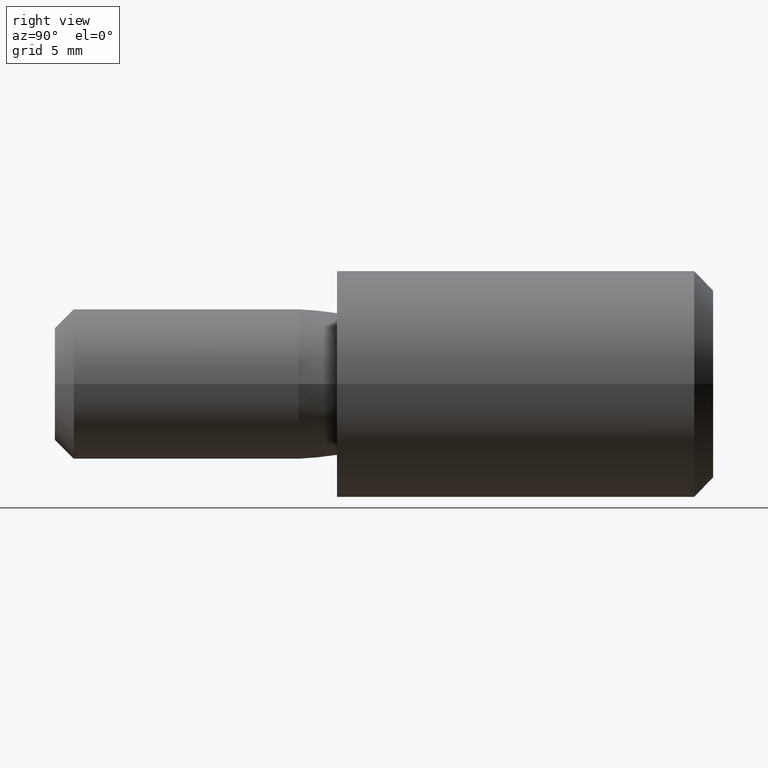
[diagram: clean part render]
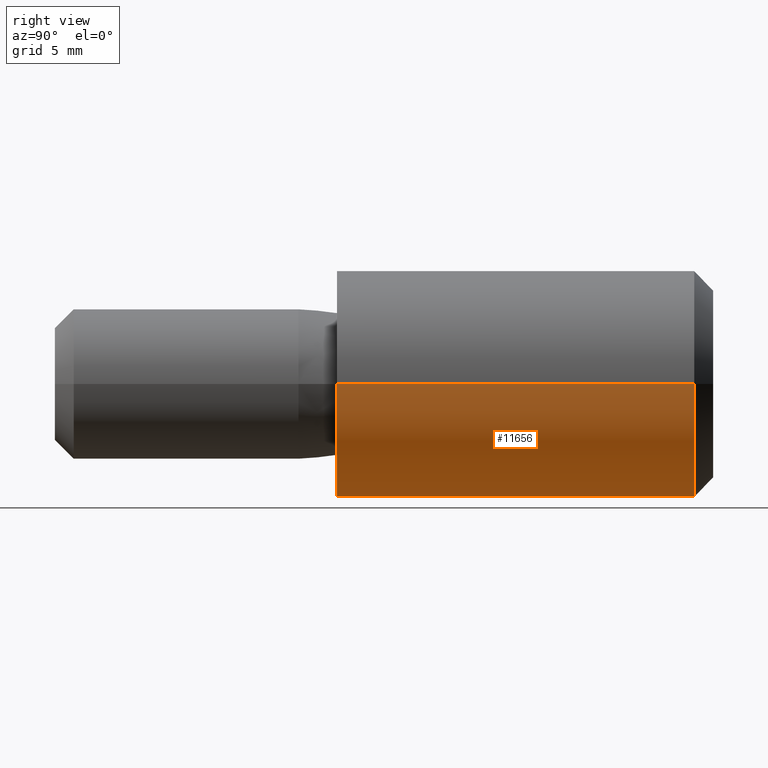
[diagram: same view with one face highlighted and labeled with its STEP entity id]
A machine part, right view. The second image highlights one B-rep face of the part: STEP entity #11656.
In plain terms, the highlighted cylindrical surface (partial cylindrical patch) has radius 6 mm, axis along (-0, -1, -0).
Its self-contained STEP definition (entity closure, byte-faithful):
#63 = VERTEX_POINT ( 'NONE', #4847 ) ;
#872 = VERTEX_POINT ( 'NONE', #13092 ) ;
#1045 = DIRECTION ( 'NONE',  ( -4.956352788505162800E-017, -1.000000000000000000, -0.0000000000000000000 ) ) ;
#1263 = DIRECTION ( 'NONE',  ( -4.956352788505160300E-017, -1.000000000000000000, -0.0000000000000000000 ) ) ;
#1409 = AXIS2_PLACEMENT_3D ( 'NONE', #8447, #2405, #9865 ) ;
#1724 = DIRECTION ( 'NONE',  ( -4.956352788505162800E-017, -1.000000000000000000, -0.0000000000000000000 ) ) ;
#1926 = LINE ( 'NONE', #13047, #8699 ) ;
#2373 = EDGE_CURVE ( 'NONE', #3226, #872, #1926, .T. ) ;
#2405 = DIRECTION ( 'NONE',  ( -4.956352788505162800E-017, -1.000000000000000000, -0.0000000000000000000 ) ) ;
#2587 = ORIENTED_EDGE ( 'NONE', *, *, #10692, .F. ) ;
#2728 = VECTOR ( 'NONE', #6490, 1000.000000000000000 ) ;
#3226 = VERTEX_POINT ( 'NONE', #10696 ) ;
#3711 = CIRCLE ( 'NONE', #7943, 6.000000000000000900 ) ;
#3890 = DIRECTION ( 'NONE',  ( 1.000000000000000000, 0.0000000000000000000, 0.0000000000000000000 ) ) ;
#4599 = ORIENTED_EDGE ( 'NONE', *, *, #11099, .T. ) ;
#4714 = CARTESIAN_POINT ( 'NONE',  ( 6.000000000000004400, -2.981555974335137200E-016, 0.0000000000000000000 ) ) ;
#4847 = CARTESIAN_POINT ( 'NONE',  ( 6.000000000000003600, 19.00000000000000400, 0.0000000000000000000 ) ) ;
#5227 = DIRECTION ( 'NONE',  ( -1.000000000000000000, 0.0000000000000000000, 0.0000000000000000000 ) ) ;
#5916 = EDGE_LOOP ( 'NONE', ( #12492, #4599, #11383, #2587 ) ) ;
#6221 = FACE_OUTER_BOUND ( 'NONE', #5916, .T. ) ;
#6223 = AXIS2_PLACEMENT_3D ( 'NONE', #9800, #1724, #3890 ) ;
#6490 = DIRECTION ( 'NONE',  ( -4.956352788505162800E-017, -1.000000000000000000, -0.0000000000000000000 ) ) ;
#6950 = EDGE_CURVE ( 'NONE', #63, #9371, #11085, .T. ) ;
#7165 = CYLINDRICAL_SURFACE ( 'NONE', #6223, 6.000000000000000900 ) ;
#7678 = CIRCLE ( 'NONE', #1409, 6.000000000000002700 ) ;
#7943 = AXIS2_PLACEMENT_3D ( 'NONE', #8287, #1263, #5227 ) ;
#8287 = CARTESIAN_POINT ( 'NONE',  ( 1.685159948091755500E-015, 19.00000000000000400, 0.0000000000000000000 ) ) ;
#8425 = CARTESIAN_POINT ( 'NONE',  ( 6.000000000000000900, -15.00000000000000000, 0.0000000000000000000 ) ) ;
#8447 = CARTESIAN_POINT ( 'NONE',  ( 7.434529182757744400E-016, 0.0000000000000000000, 0.0000000000000000000 ) ) ;
#8699 = VECTOR ( 'NONE', #1045, 1000.000000000000000 ) ;
#9371 = VERTEX_POINT ( 'NONE', #4714 ) ;
#9800 = CARTESIAN_POINT ( 'NONE',  ( 0.0000000000000000000, -15.00000000000000000, 0.0000000000000000000 ) ) ;
#9865 = DIRECTION ( 'NONE',  ( 1.000000000000000000, -4.956352788505162200E-017, 0.0000000000000000000 ) ) ;
#10692 = EDGE_CURVE ( 'NONE', #872, #9371, #7678, .T. ) ;
#10696 = CARTESIAN_POINT ( 'NONE',  ( -5.999999999999999100, 19.00000000000000400, 7.347880794884120700E-016 ) ) ;
#11085 = LINE ( 'NONE', #8425, #2728 ) ;
#11099 = EDGE_CURVE ( 'NONE', #3226, #63, #3711, .T. ) ;
#11383 = ORIENTED_EDGE ( 'NONE', *, *, #6950, .T. ) ;
#11656 = ADVANCED_FACE ( 'NONE', ( #6221 ), #7165, .T. ) ;
#12492 = ORIENTED_EDGE ( 'NONE', *, *, #2373, .F. ) ;
#13047 = CARTESIAN_POINT ( 'NONE',  ( -6.000000000000000900, -15.00000000000000000, 7.347880794884120700E-016 ) ) ;
#13092 = CARTESIAN_POINT ( 'NONE',  ( -6.000000000000002700, 2.981555974335137200E-016, 7.347880794884122700E-016 ) ) ;